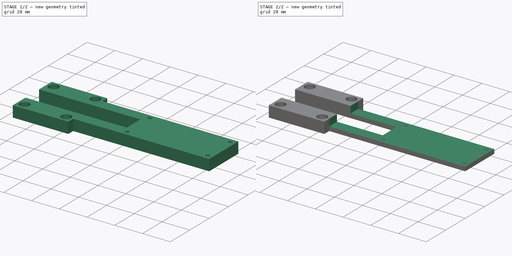
[diagram: build sequence overview — one tinted view per stage of 2, left to right]
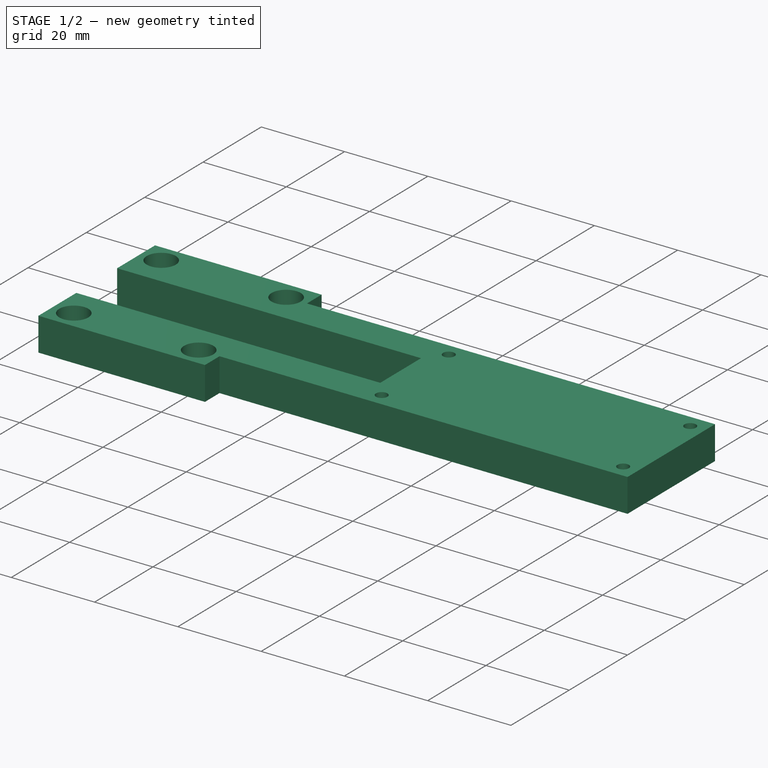
[diagram: stage 1 of 2 — iso view after this stage's code; geometry added in this stage tinted green]
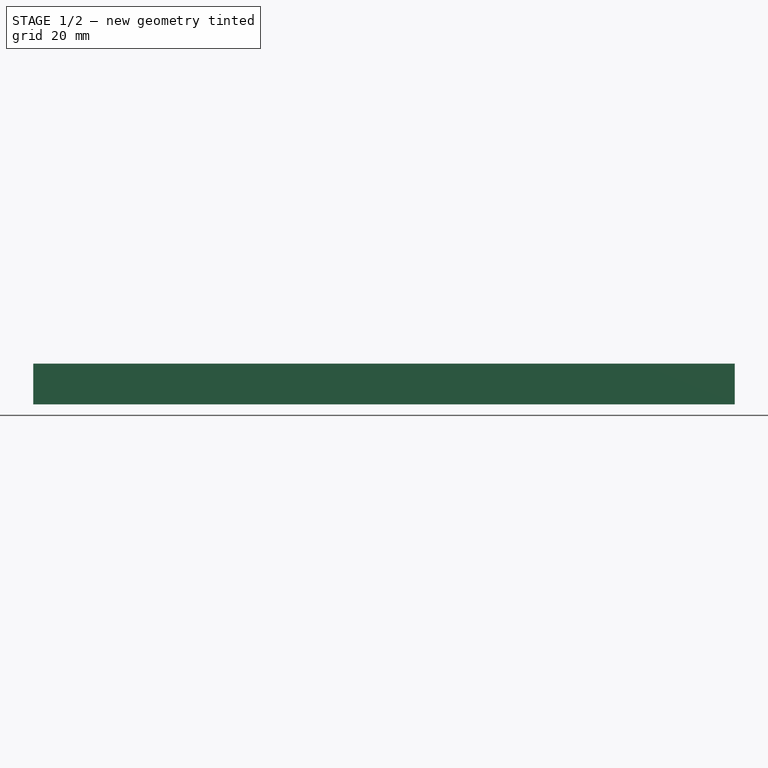
[diagram: stage 1 of 2 — front view after this stage's code; geometry added in this stage tinted green]
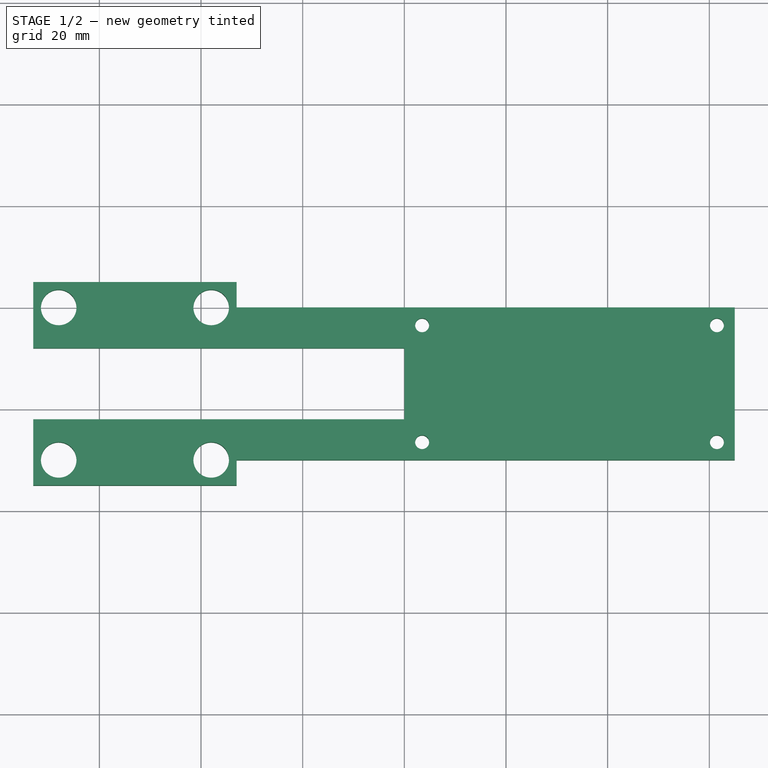
[diagram: stage 1 of 2 — top view after this stage's code; geometry added in this stage tinted green]
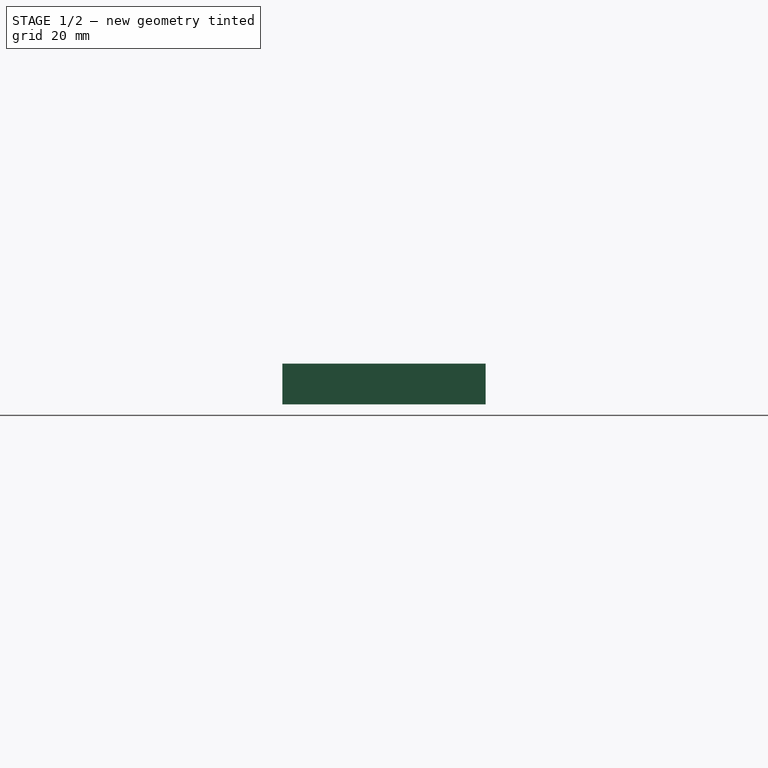
[diagram: stage 1 of 2 — right view after this stage's code; geometry added in this stage tinted green]
FCSTD DOCUMENT  (FreeCAD 0.16R6712 (Git))
Label: LCM piboard2
License: All rights reserved
LicenseURL: http://en.wikipedia.org/wiki/All_rights_reserved
objects: Sketcher::SketchObject×2, PartDesign::Pad×1, PartDesign::Pocket×1
note: 6 computed .brp shape members not serialized (recipe doc carries the construction recipe); baked Part::Feature solids carry a one-line shape summary decoded from their .brp

FEATURE [Sketcher::SketchObject] Sketch
  sketch-geometry (24):
    g0: LineSegment StartX=0 StartY=0 StartZ=0 EndX=65 EndY=0 EndZ=0
    g1: LineSegment StartX=65 StartY=0 StartZ=0 EndX=65 EndY=-30 EndZ=0
    g2: LineSegment StartX=65 StartY=-30 StartZ=0 EndX=0 EndY=-30 EndZ=0
    g3: Circle CenterX=3.5 CenterY=-3.5 CenterZ=0 NormalX=0 NormalY=0 NormalZ=1 Radius=1.375
    g4: Circle CenterX=61.5 CenterY=-3.5 CenterZ=0 NormalX=0 NormalY=0 NormalZ=1 Radius=1.375
    g5: Circle CenterX=3.5 CenterY=-26.5 CenterZ=0 NormalX=0 NormalY=0 NormalZ=1 Radius=1.375
    g6: Circle CenterX=61.5 CenterY=-26.5 CenterZ=0 NormalX=0 NormalY=0 NormalZ=1 Radius=1.375
    g7: LineSegment StartX=-33 StartY=-8 StartZ=0 EndX=0 EndY=-8 EndZ=0
    g8: LineSegment StartX=-33 StartY=-22 StartZ=0 EndX=0 EndY=-22 EndZ=0
    g9: LineSegment StartX=-73 StartY=5 StartZ=0 EndX=-33 EndY=5 EndZ=0
    g10: LineSegment StartX=-33 StartY=5 StartZ=0 EndX=-33 EndY=0 EndZ=0
    g11: LineSegment StartX=-33 StartY=-35 StartZ=0 EndX=-73 EndY=-35 EndZ=0
    g12: LineSegment StartX=-73 StartY=-35 StartZ=0 EndX=-73 EndY=-22 EndZ=0
    g13: LineSegment StartX=-33 StartY=-30 StartZ=0 EndX=-33 EndY=-35 EndZ=0
    g14: LineSegment StartX=0 StartY=0 StartZ=0 EndX=-33 EndY=0 EndZ=0
    g15: LineSegment StartX=-33 StartY=-8 StartZ=0 EndX=-73 EndY=-8 EndZ=0
    g16: LineSegment StartX=0 StartY=-30 StartZ=0 EndX=-33 EndY=-30 EndZ=0
    g17: LineSegment StartX=-33 StartY=-22 StartZ=0 EndX=-73 EndY=-22 EndZ=0
    g18: LineSegment StartX=-73 StartY=-8 StartZ=0 EndX=-73 EndY=5 EndZ=0
    g19: LineSegment StartX=0 StartY=-8 StartZ=0 EndX=0 EndY=-22 EndZ=0
    g20: Circle CenterX=-68 CenterY=0 CenterZ=0 NormalX=0 NormalY=0 NormalZ=1 Radius=3.5
    g21: Circle CenterX=-38 CenterY=0 CenterZ=0 NormalX=0 NormalY=0 NormalZ=1 Radius=3.5
    g22: Circle CenterX=-68 CenterY=-30 CenterZ=0 NormalX=0 NormalY=0 NormalZ=1 Radius=3.5
    g23: Circle CenterX=-38 CenterY=-30 CenterZ=0 NormalX=0 NormalY=0 NormalZ=1 Radius=3.5
  constraints (74):
    c: Coincident(g1,g2)
    c: Horizontal(g0)
    c: Horizontal(g2)
    c: Vertical(g1)
    c: Coincident(g-1,g0)
    c: DistanceY(g2,g0) = 30
    c: DistanceX(g0,g0) = 65
    c: Radius(g3) = 1.375
    c: Equal(g3,g4)
    c: Equal(g3,g6)
    c: Equal(g3,g5)
    c: DistanceX(g-1,g3) = 3.5
    c: DistanceY(g3,g-1) = 3.5
    c: DistanceX(g4,g0) = 3.5
    c: DistanceY(g4,g0) = 3.5
    c: DistanceX(g2,g5) = 3.5
    c: DistanceY(g2,g5) = 3.5
    c: DistanceX(g6,g1) = 3.5
    c: DistanceY(g1,g6) = 3.5
    c: Coincident(g0,g1)
    c: Horizontal(g7)
    c: DistanceX(g7,g7) = 33
    c: DistanceX(g-1,g7) = 0
    c: DistanceY(g7,g-1) = 8
    c: Horizontal(g8)
    c: DistanceX(g8,g8) = 33
    c: DistanceX(g8,g-1) = 0
    c: DistanceY(g2,g8) = 8
    c: Coincident(g9,g10)
    c: Coincident(g13,g11)
    c: Coincident(g11,g12)
    c: Coincident(g18,g9)
    c: Horizontal(g9)
    c: Horizontal(g11)
    c: Vertical(g10)
    c: Vertical(g12)
    c: DistanceX(g9,g9) = 40
    c: DistanceY(g13,g10) = 40
    c: DistanceX(g7,g9) = 0
    c: DistanceY(g-1,g9) = 5
    c: Tangent(g10,g13)
    c: Coincident(g14,g-1)
    c: Horizontal(g14)
    c: DistanceX(g14,g14) = 33
    c: Coincident(g15,g7)
    c: Horizontal(g15)
    c: DistanceX(g15,g15) = 40
    c: PointOnObject(g10,g14)
    c: Coincident(g16,g2)
    c: Horizontal(g16)
    c: DistanceX(g16,g16) = 33
    c: Coincident(g17,g8)
    c: Horizontal(g17)
    c: DistanceX(g17,g17) = 40
    c: PointOnObject(g13,g16)
    c: PointOnObject(g12,g17)
    c: PointOnObject(g18,g15)
    c: Tangent(g12,g18)
    c: Vertical(g19)
    c: DistanceY(g19,g19) = 14
    c: DistanceY(g19,g-1) = 8
    c: DistanceX(g-1,g19) = 0
    c: Radius(g20) = 3.5
    c: Equal(g20,g21)
    c: Equal(g20,g22)
    c: Equal(g20,g23)
    c: DistanceX(g20,g22) = 0
    c: DistanceX(g23,g21) = 0
    c: DistanceY(g21,g20) = 0
    c: DistanceY(g23,g22) = 0
    c: DistanceY(g20,g9) = 5
    c: DistanceX(g9,g20) = 5
    c: DistanceX(g23,g11) = 5
    c: DistanceY(g11,g23) = 5
FEATURE [PartDesign::Pad] Pad
  Length = 8
  Length2 = 100
  Sketch = -> Sketch
  Type = 0
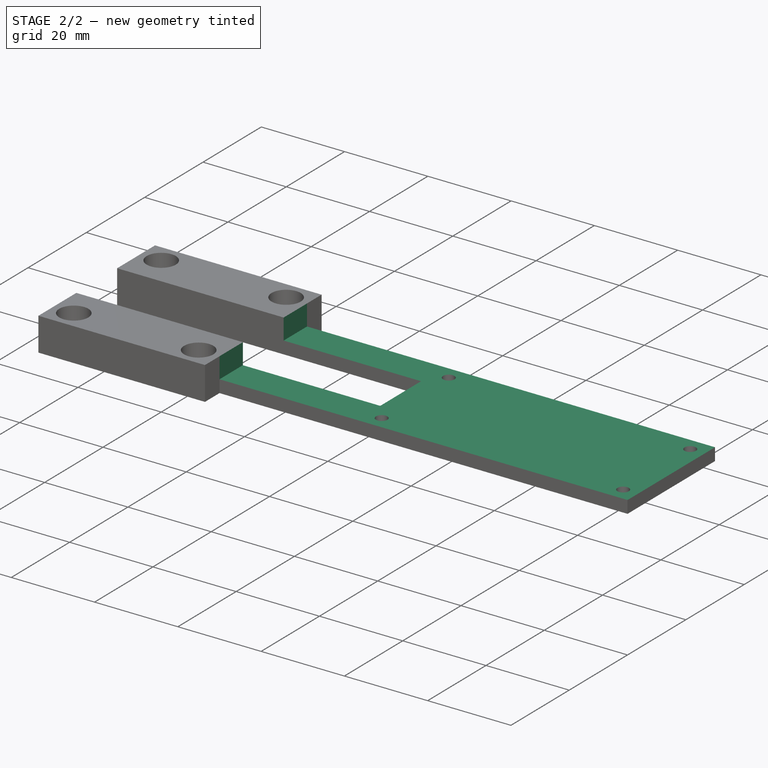
[diagram: stage 2 of 2 — iso view after this stage's code; geometry added in this stage tinted green]
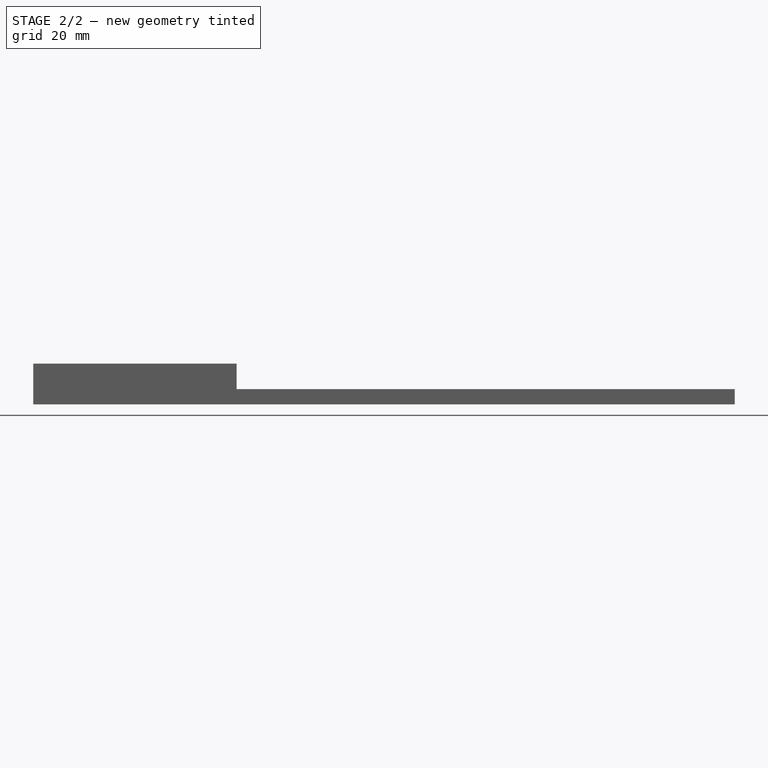
[diagram: stage 2 of 2 — front view after this stage's code; geometry added in this stage tinted green]
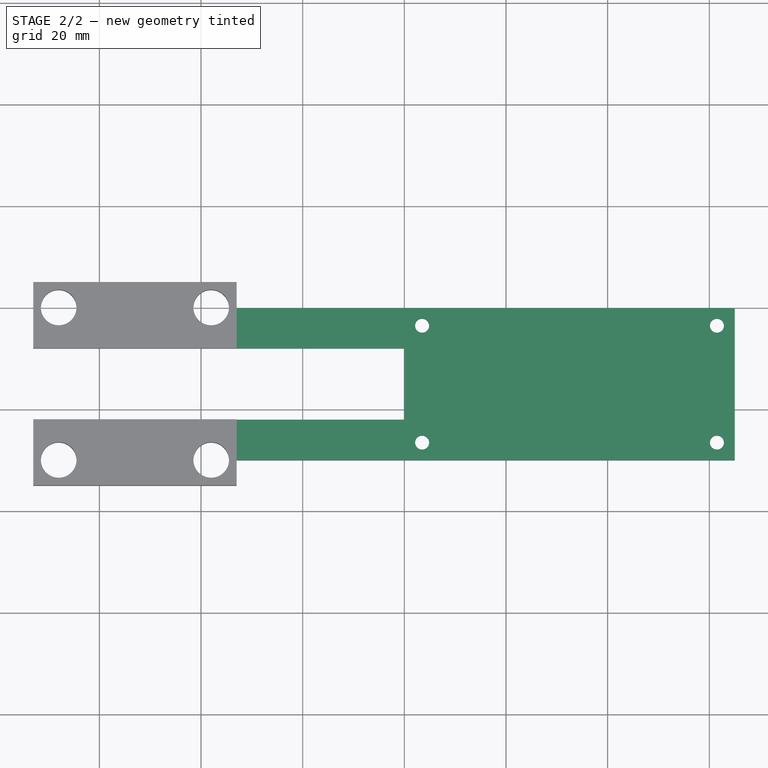
[diagram: stage 2 of 2 — top view after this stage's code; geometry added in this stage tinted green]
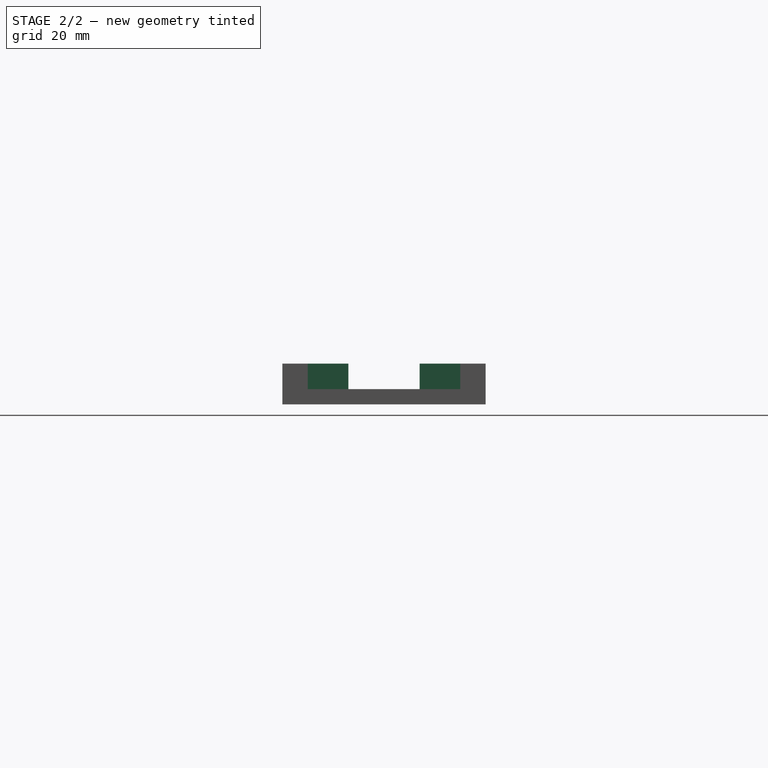
[diagram: stage 2 of 2 — right view after this stage's code; geometry added in this stage tinted green]
FEATURE [Sketcher::SketchObject] Sketch001
  Placement = pos=(65,0,0) rot=(0.57735,0.57735,0.57735;2.0944rad)
  Support = -> Pad [Face7]
  sketch-geometry (4):
    g0: LineSegment StartX=-30 StartY=8 StartZ=0 EndX=0 EndY=8 EndZ=0
    g1: LineSegment StartX=0 StartY=8 StartZ=0 EndX=0 EndY=3 EndZ=0
    g2: LineSegment StartX=0 StartY=3 StartZ=0 EndX=-30 EndY=3 EndZ=0
    g3: LineSegment StartX=-30 StartY=3 StartZ=0 EndX=-30 EndY=8 EndZ=0
  constraints (12):
    c: Coincident(g0,g1)
    c: Coincident(g1,g2)
    c: Coincident(g2,g3)
    c: Coincident(g3,g0)
    c: Horizontal(g0)
    c: Horizontal(g2)
    c: Vertical(g1)
    c: Vertical(g3)
    c: DistanceX(g0,g0) = 30
    c: DistanceY(g1,g1) = 5
    c: DistanceX(g-1,g1) = 0
    c: DistanceY(g-1,g1) = 3
FEATURE [PartDesign::Pocket] Pocket
  Length = 98
  Sketch = -> Sketch001
  Type = 0
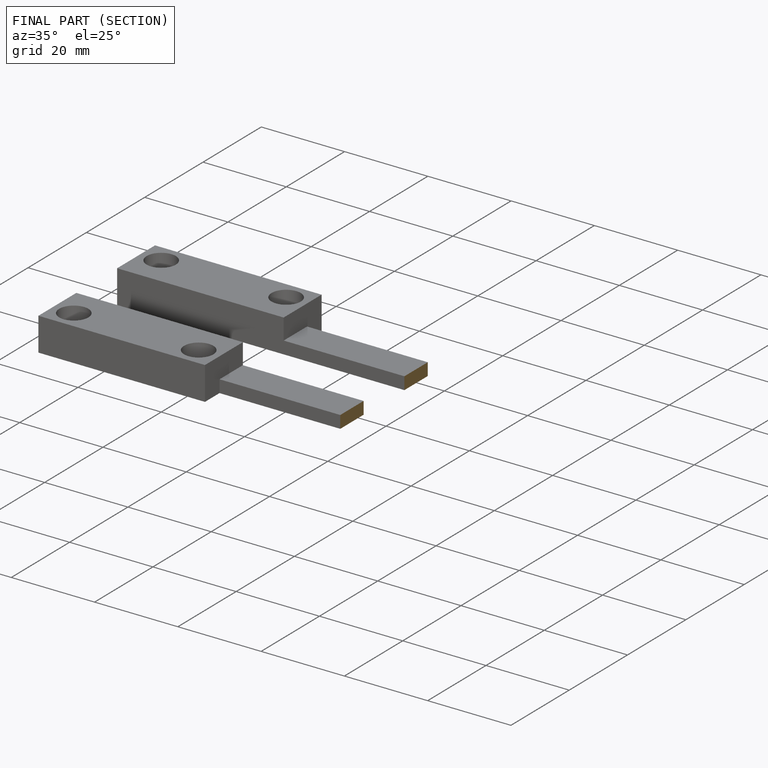
[diagram: finished part — half-section view (interior)]
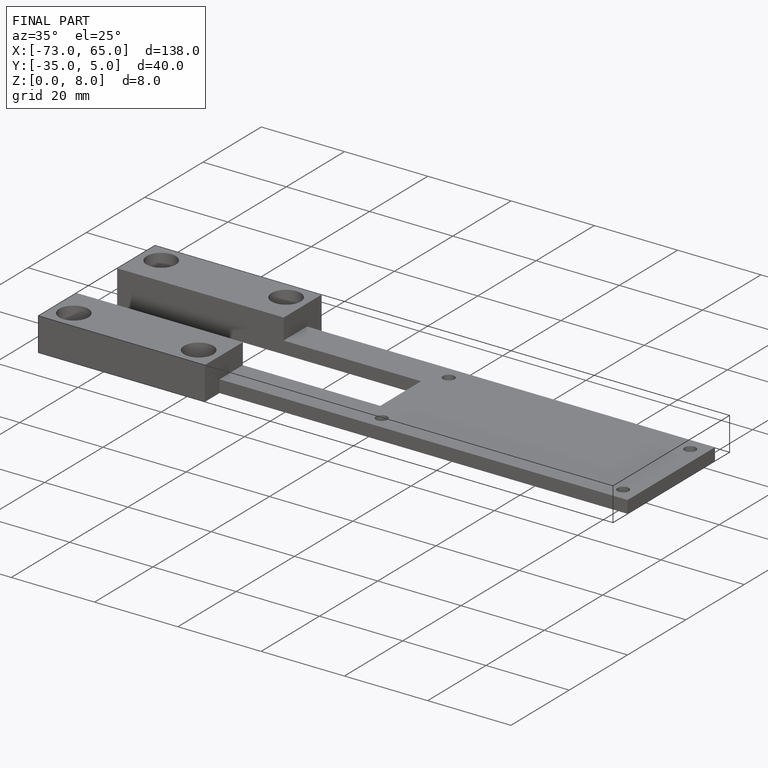
[diagram: finished part — iso view with bounding-box wireframe]
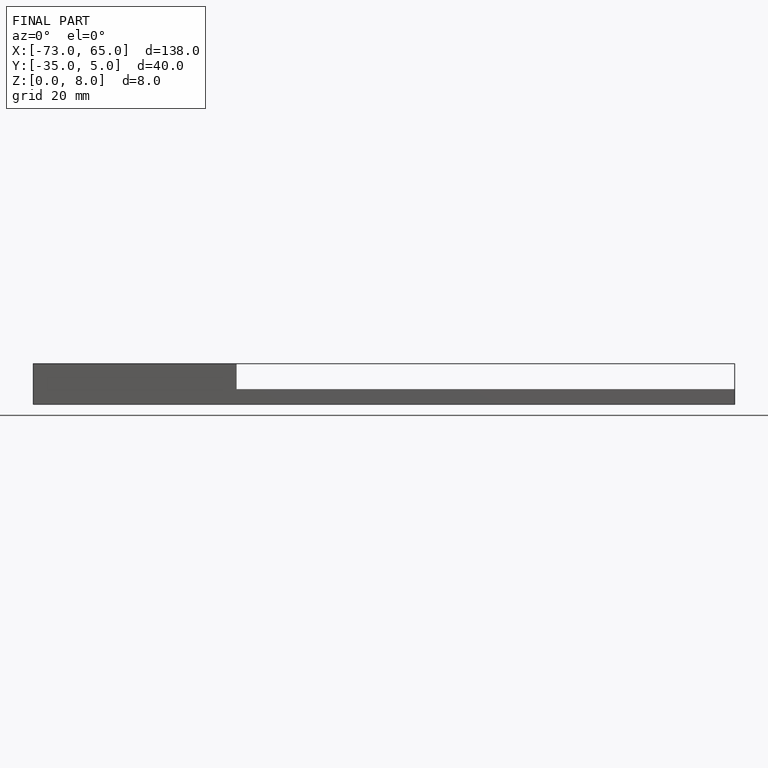
[diagram: finished part — front view with bounding-box wireframe]
